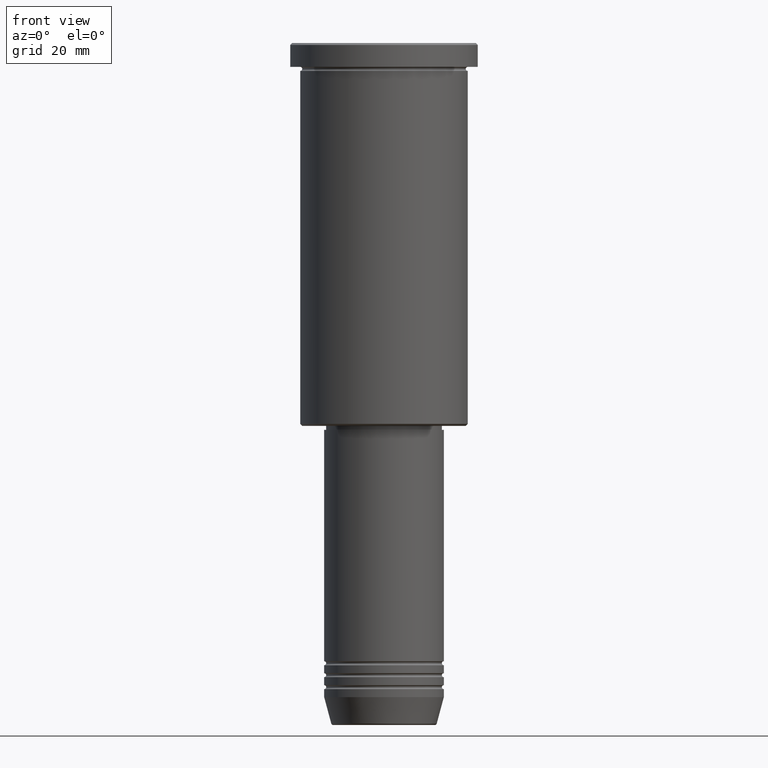
[diagram: clean part render]
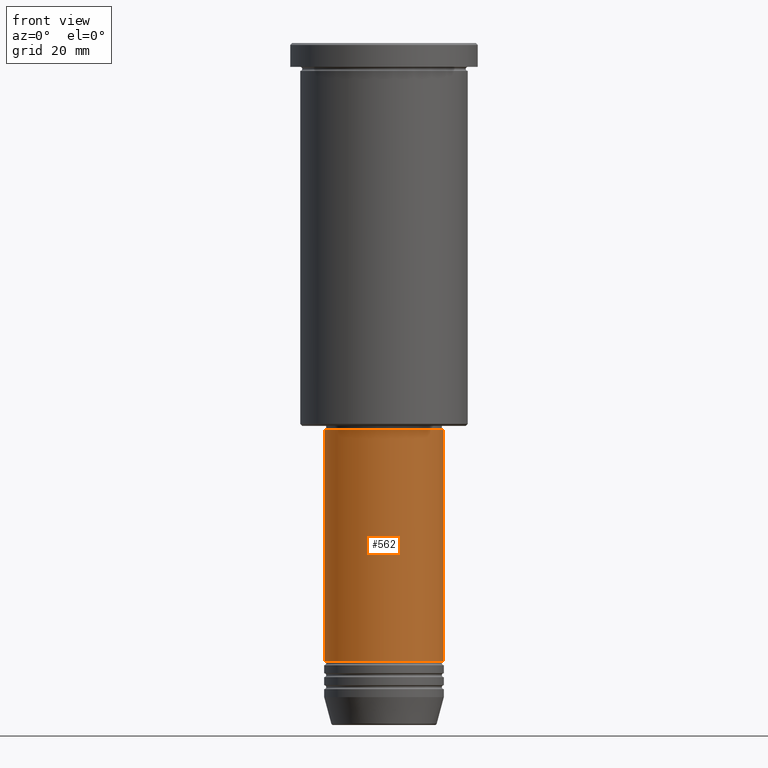
[diagram: same view with one face highlighted and labeled with its STEP entity id]
A machine part, front view. The second image highlights one B-rep face of the part: STEP entity #562.
In plain terms, the highlighted cylindrical surface (partial cylindrical patch) has radius 15 mm, axis along (-0, -0, 1).
Its self-contained STEP definition (entity closure, byte-faithful):
#87 = DIRECTION ( 'NONE',  ( 1.000000000000000000, 0.000000000000000000, 0.000000000000000000 ) ) ;
#92 = FACE_OUTER_BOUND ( 'NONE', #426, .T. ) ;
#122 = VERTEX_POINT ( 'NONE', #276 ) ;
#151 = ORIENTED_EDGE ( 'NONE', *, *, #301, .T. ) ;
#161 = CIRCLE ( 'NONE', #695, 15.00000000000000000 ) ;
#171 = CYLINDRICAL_SURFACE ( 'NONE', #555, 15.00000000000000000 ) ;
#176 = EDGE_CURVE ( 'NONE', #963, #122, #881, .T. ) ;
#187 = CARTESIAN_POINT ( 'NONE',  ( 0.000000000000000000, 0.000000000000000000, 0.000000000000000000 ) ) ;
#218 = LINE ( 'NONE', #489, #1010 ) ;
#276 = CARTESIAN_POINT ( 'NONE',  ( 15.00000000000000000, 0.000000000000000000, -154.9999999999999716 ) ) ;
#283 = CARTESIAN_POINT ( 'NONE',  ( -15.00000000000000000, 1.836970198721029589E-15, -154.9999999999999716 ) ) ;
#294 = ORIENTED_EDGE ( 'NONE', *, *, #800, .F. ) ;
#301 = EDGE_CURVE ( 'NONE', #122, #844, #218, .T. ) ;
#314 = DIRECTION ( 'NONE',  ( -0.000000000000000000, -0.000000000000000000, 1.000000000000000000 ) ) ;
#320 = AXIS2_PLACEMENT_3D ( 'NONE', #832, #443, #825 ) ;
#391 = CARTESIAN_POINT ( 'NONE',  ( -15.00000000000000000, 1.836970198721029589E-15, 0.000000000000000000 ) ) ;
#426 = EDGE_LOOP ( 'NONE', ( #294, #1148, #151, #1057 ) ) ;
#433 = DIRECTION ( 'NONE',  ( -0.000000000000000000, -0.000000000000000000, 1.000000000000000000 ) ) ;
#443 = DIRECTION ( 'NONE',  ( -0.000000000000000000, -0.000000000000000000, 1.000000000000000000 ) ) ;
#482 = LINE ( 'NONE', #391, #635 ) ;
#489 = CARTESIAN_POINT ( 'NONE',  ( 15.00000000000000000, 0.000000000000000000, 0.000000000000000000 ) ) ;
#555 = AXIS2_PLACEMENT_3D ( 'NONE', #187, #433, #87 ) ;
#562 = ADVANCED_FACE ( 'NONE', ( #92 ), #171, .T. ) ;
#585 = DIRECTION ( 'NONE',  ( -0.000000000000000000, -0.000000000000000000, 1.000000000000000000 ) ) ;
#593 = CARTESIAN_POINT ( 'NONE',  ( 15.00000000000000000, 0.000000000000000000, -97.00000000000000000 ) ) ;
#635 = VECTOR ( 'NONE', #314, 1000.000000000000000 ) ;
#695 = AXIS2_PLACEMENT_3D ( 'NONE', #1136, #585, #767 ) ;
#767 = DIRECTION ( 'NONE',  ( 1.000000000000000000, 0.000000000000000000, 0.000000000000000000 ) ) ;
#800 = EDGE_CURVE ( 'NONE', #963, #856, #482, .T. ) ;
#825 = DIRECTION ( 'NONE',  ( 1.000000000000000000, 0.000000000000000000, 0.000000000000000000 ) ) ;
#832 = CARTESIAN_POINT ( 'NONE',  ( 0.000000000000000000, 0.000000000000000000, -154.9999999999999716 ) ) ;
#844 = VERTEX_POINT ( 'NONE', #593 ) ;
#856 = VERTEX_POINT ( 'NONE', #1141 ) ;
#859 = DIRECTION ( 'NONE',  ( -0.000000000000000000, -0.000000000000000000, 1.000000000000000000 ) ) ;
#881 = CIRCLE ( 'NONE', #320, 15.00000000000000000 ) ;
#963 = VERTEX_POINT ( 'NONE', #283 ) ;
#1010 = VECTOR ( 'NONE', #859, 1000.000000000000000 ) ;
#1057 = ORIENTED_EDGE ( 'NONE', *, *, #1180, .F. ) ;
#1136 = CARTESIAN_POINT ( 'NONE',  ( 0.000000000000000000, 0.000000000000000000, -97.00000000000000000 ) ) ;
#1141 = CARTESIAN_POINT ( 'NONE',  ( -15.00000000000000000, 1.836970198721029589E-15, -97.00000000000000000 ) ) ;
#1148 = ORIENTED_EDGE ( 'NONE', *, *, #176, .T. ) ;
#1180 = EDGE_CURVE ( 'NONE', #856, #844, #161, .T. ) ;